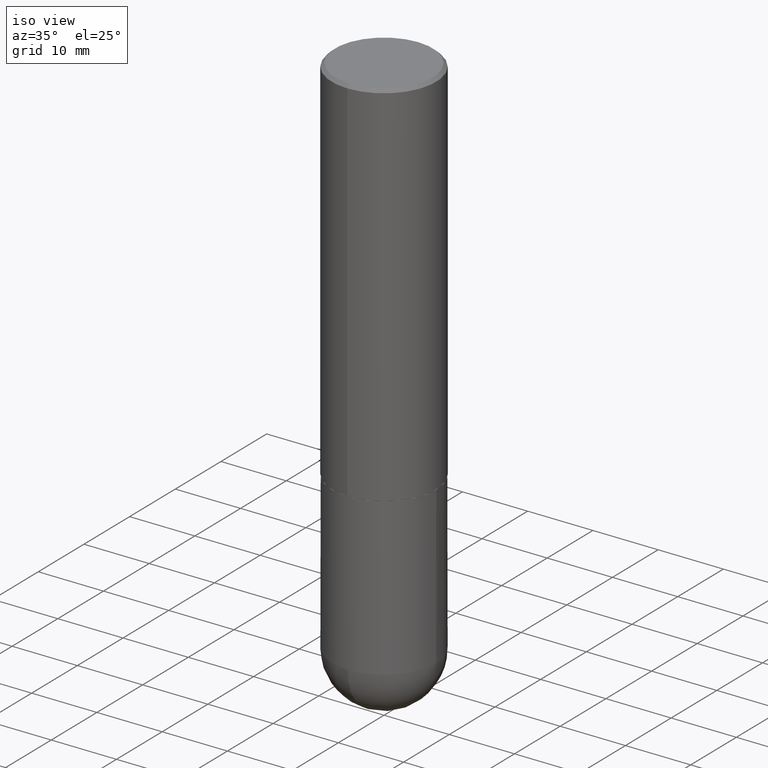
[diagram: clean part render]
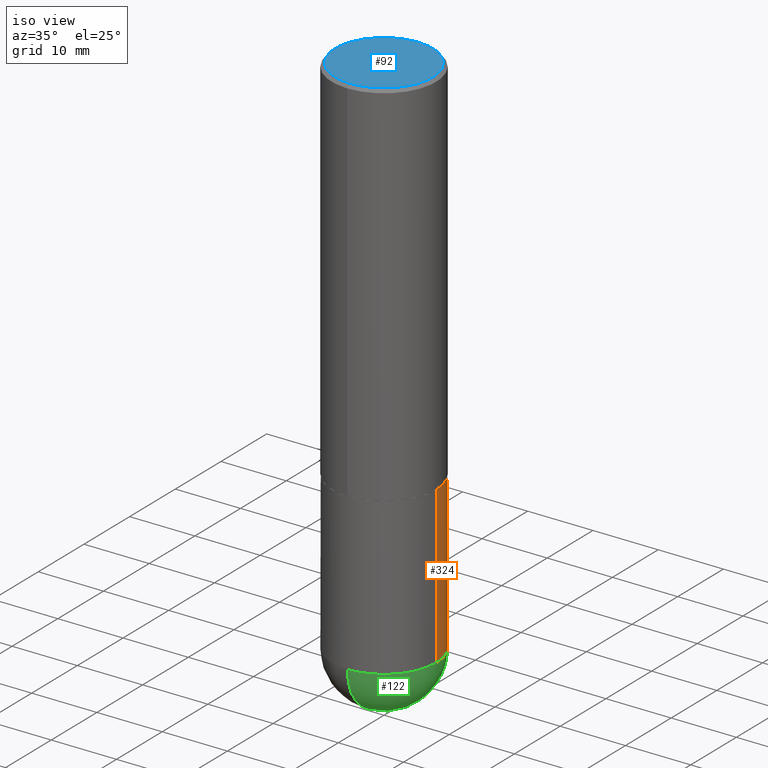
[diagram: same view with three faces highlighted in distinct colors, each labeled with its STEP entity id]
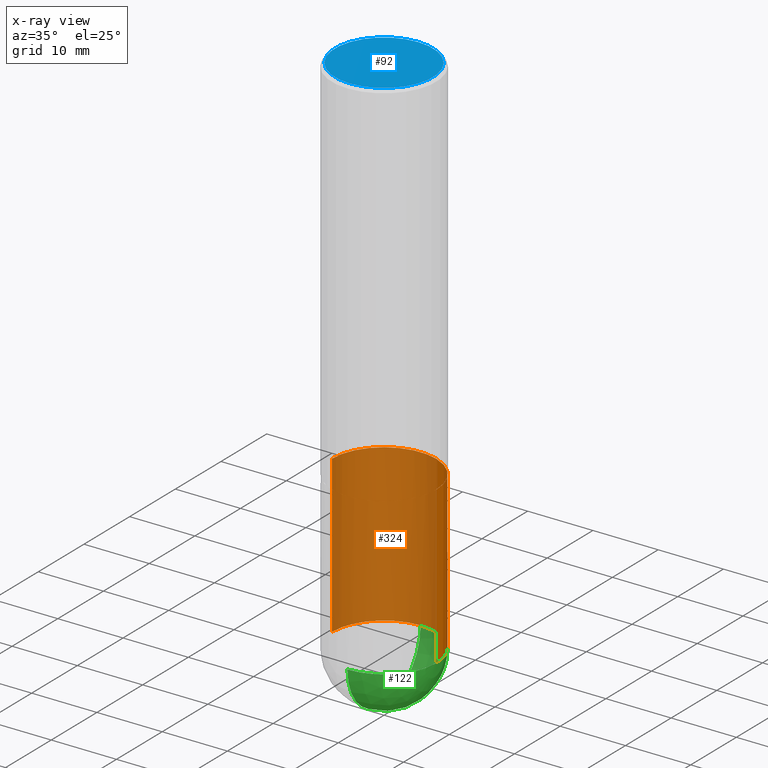
[diagram: x-ray of the same camera — body ghosted, the three highlighted faces saturated]
A machine part, iso view with three faces highlighted in distinct colors.
The next image is the same camera in x-ray (body ghosted, the three faces saturated) — at least one of them is partly hidden behind the body in this view.
Their STEP definitions:

[orange] entity #324 — the highlighted cylindrical surface (partial cylindrical patch) has radius 7.9997 mm, axis along (-0, 0, 1).
#1 = DIRECTION ( 'NONE',  ( 1.000000000000000000, -6.982962677686263555E-15, 0.000000000000000000 ) ) ;
#11 = EDGE_CURVE ( 'NONE', #368, #267, #52, .T. ) ;
#17 = VERTEX_POINT ( 'NONE', #150 ) ;
#26 = EDGE_CURVE ( 'NONE', #17, #267, #357, .T. ) ;
#31 = VECTOR ( 'NONE', #130, 39.37007874015748143 ) ;
#33 = CARTESIAN_POINT ( 'NONE',  ( 7.798477749484091354E-29, -1.113415941550384898E-14, -3.188949999999999729 ) ) ;
#34 = LINE ( 'NONE', #163, #31 ) ;
#38 = CARTESIAN_POINT ( 'NONE',  ( 0.3149500000000000077, -1.168398043933816632E-14, -3.188949999999999729 ) ) ;
#49 = AXIS2_PLACEMENT_3D ( 'NONE', #93, #185, #1 ) ;
#52 = LINE ( 'NONE', #78, #405 ) ;
#78 = CARTESIAN_POINT ( 'NONE',  ( -0.3149500000000000077, 2.237854346276435590E-15, -1.549218606675782676E-29 ) ) ;
#80 = DIRECTION ( 'NONE',  ( -2.445468806185136877E-29, 3.491481338843145188E-15, 1.000000000000000000 ) ) ;
#81 = CIRCLE ( 'NONE', #397, 0.3149500000000000077 ) ;
#93 = CARTESIAN_POINT ( 'NONE',  ( 7.798477749484091354E-29, -1.113415941550384898E-14, -3.188949999999999729 ) ) ;
#94 = AXIS2_PLACEMENT_3D ( 'NONE', #303, #124, #161 ) ;
#110 = EDGE_CURVE ( 'NONE', #230, #341, #300, .T. ) ;
#111 = ORIENTED_EDGE ( 'NONE', *, *, #144, .T. ) ;
#124 = DIRECTION ( 'NONE',  ( -2.445468806185136597E-29, 3.491481338843145583E-15, 1.000000000000000000 ) ) ;
#128 = EDGE_CURVE ( 'NONE', #230, #17, #34, .T. ) ;
#130 = DIRECTION ( 'NONE',  ( -2.445468806185136877E-29, 3.491481338843145188E-15, 1.000000000000000000 ) ) ;
#141 = ORIENTED_EDGE ( 'NONE', *, *, #110, .T. ) ;
#144 = EDGE_CURVE ( 'NONE', #341, #368, #81, .T. ) ;
#150 = CARTESIAN_POINT ( 'NONE',  ( 0.3149500000000000077, -1.003451736783519063E-14, -2.244099999999999540 ) ) ;
#161 = DIRECTION ( 'NONE',  ( 1.000000000000000000, -6.982962677686266711E-15, 4.876176775795936353E-29 ) ) ;
#163 = CARTESIAN_POINT ( 'NONE',  ( 0.3149500000000000077, -2.199284095337289871E-15, 1.535751875536930130E-29 ) ) ;
#176 = ORIENTED_EDGE ( 'NONE', *, *, #11, .T. ) ;
#178 = CYLINDRICAL_SURFACE ( 'NONE', #94, 0.3149500000000000077 ) ;
#179 = EDGE_LOOP ( 'NONE', ( #111, #176, #350, #299, #141 ) ) ;
#185 = DIRECTION ( 'NONE',  ( -2.445468806185136597E-29, 3.491481338843145583E-15, 1.000000000000000000 ) ) ;
#217 = DIRECTION ( 'NONE',  ( -2.445468806185136597E-29, 3.491481338843145583E-15, 1.000000000000000000 ) ) ;
#230 = VERTEX_POINT ( 'NONE', #38 ) ;
#247 = CARTESIAN_POINT ( 'NONE',  ( -0.3149500000000000077, -7.246841997724440463E-15, -2.244099999999999540 ) ) ;
#267 = VERTEX_POINT ( 'NONE', #247 ) ;
#273 = CARTESIAN_POINT ( 'NONE',  ( 2.199284095337366390E-15, 0.3149499999999886835, -3.188950000000001062 ) ) ;
#299 = ORIENTED_EDGE ( 'NONE', *, *, #128, .F. ) ;
#300 = CIRCLE ( 'NONE', #49, 0.3149500000000000077 ) ;
#303 = CARTESIAN_POINT ( 'NONE',  ( 0.000000000000000000, 0.000000000000000000, 0.000000000000000000 ) ) ;
#311 = DIRECTION ( 'NONE',  ( 1.000000000000000000, -6.982962677686266711E-15, 0.000000000000000000 ) ) ;
#314 = FACE_OUTER_BOUND ( 'NONE', #179, .T. ) ;
#318 = CARTESIAN_POINT ( 'NONE',  ( -0.3149500000000000077, -7.246841997724442041E-15, -3.188949999999999729 ) ) ;
#324 = ADVANCED_FACE ( 'NONE', ( #314 ), #178, .T. ) ;
#336 = AXIS2_PLACEMENT_3D ( 'NONE', #378, #217, #311 ) ;
#341 = VERTEX_POINT ( 'NONE', #273 ) ;
#350 = ORIENTED_EDGE ( 'NONE', *, *, #26, .F. ) ;
#357 = CIRCLE ( 'NONE', #336, 0.3149500000000000077 ) ;
#361 = DIRECTION ( 'NONE',  ( -2.445468806185136597E-29, 3.491481338843145583E-15, 1.000000000000000000 ) ) ;
#368 = VERTEX_POINT ( 'NONE', #318 ) ;
#378 = CARTESIAN_POINT ( 'NONE',  ( 5.487876547960064752E-29, -7.835233272497900762E-15, -2.244099999999999540 ) ) ;
#379 = DIRECTION ( 'NONE',  ( 1.000000000000000000, -6.982962677686263555E-15, 0.000000000000000000 ) ) ;
#397 = AXIS2_PLACEMENT_3D ( 'NONE', #33, #361, #379 ) ;
#405 = VECTOR ( 'NONE', #80, 39.37007874015748143 ) ;

[blue] entity #92 — the highlighted planar face has unit normal (0, -0, -1).
#3 = DIRECTION ( 'NONE',  ( -2.446054750560314291E-29, 3.490642233148008459E-15, 1.000000000000000000 ) ) ;
#7 = DIRECTION ( 'NONE',  ( -6.982962677686265922E-15, -1.000000000000000000, 3.490642233148008065E-15 ) ) ;
#12 = ORIENTED_EDGE ( 'NONE', *, *, #139, .T. ) ;
#19 = EDGE_LOOP ( 'NONE', ( #12, #102 ) ) ;
#59 = FACE_OUTER_BOUND ( 'NONE', #19, .T. ) ;
#88 = CARTESIAN_POINT ( 'NONE',  ( -5.423274087960184450E-45, 7.739282846810618140E-31, 2.217151552604406197E-16 ) ) ;
#91 = CARTESIAN_POINT ( 'NONE',  ( 2.129454468560426178E-15, 0.2949499999999997679, -8.078497714065635911E-16 ) ) ;
#92 = ADVANCED_FACE ( 'NONE', ( #59 ), #287, .F. ) ;
#102 = ORIENTED_EDGE ( 'NONE', *, *, #175, .T. ) ;
#108 = AXIS2_PLACEMENT_3D ( 'NONE', #320, #246, #352 ) ;
#139 = EDGE_CURVE ( 'NONE', #364, #296, #262, .T. ) ;
#175 = EDGE_CURVE ( 'NONE', #296, #364, #218, .T. ) ;
#199 = AXIS2_PLACEMENT_3D ( 'NONE', #88, #3, #7 ) ;
#218 = CIRCLE ( 'NONE', #268, 0.2949499999999997679 ) ;
#246 = DIRECTION ( 'NONE',  ( 2.446054750560313731E-29, -3.490642233148008854E-15, -1.000000000000000000 ) ) ;
#250 = DIRECTION ( 'NONE',  ( -6.982962677686265922E-15, -1.000000000000000000, 3.490642233148008065E-15 ) ) ;
#262 = CIRCLE ( 'NONE', #199, 0.2949499999999997679 ) ;
#268 = AXIS2_PLACEMENT_3D ( 'NONE', #288, #356, #250 ) ;
#287 = PLANE ( 'NONE',  #108 ) ;
#288 = CARTESIAN_POINT ( 'NONE',  ( -5.423274087960184450E-45, 7.739282846810618140E-31, 2.217151552604406197E-16 ) ) ;
#296 = VERTEX_POINT ( 'NONE', #412 ) ;
#320 = CARTESIAN_POINT ( 'NONE',  ( 2.059624841783562486E-15, 0.2949499999999997679, -9.187073490367838516E-16 ) ) ;
#352 = DIRECTION ( 'NONE',  ( 6.982962677686265922E-15, 1.000000000000000000, -3.490642233148008854E-15 ) ) ;
#356 = DIRECTION ( 'NONE',  ( -2.446054750560314291E-29, 3.490642233148008459E-15, 1.000000000000000000 ) ) ;
#364 = VERTEX_POINT ( 'NONE', #91 ) ;
#412 = CARTESIAN_POINT ( 'NONE',  ( -2.092108864420427242E-15, -0.2949499999999997679, 1.251280081927445028E-15 ) ) ;

[green] entity #122 — the highlighted spherical surface has radius 7.9997 mm.
#1 = DIRECTION ( 'NONE',  ( 1.000000000000000000, -6.982962677686263555E-15, 0.000000000000000000 ) ) ;
#25 = VERTEX_POINT ( 'NONE', #243 ) ;
#27 = CARTESIAN_POINT ( 'NONE',  ( 7.798477749484091354E-29, -1.113415941550384898E-14, -3.188949999999999729 ) ) ;
#37 = DIRECTION ( 'NONE',  ( -7.105427357600999492E-15, -1.000000000000000000, 0.000000000000000000 ) ) ;
#38 = CARTESIAN_POINT ( 'NONE',  ( 0.3149500000000000077, -1.168398043933816632E-14, -3.188949999999999729 ) ) ;
#45 = EDGE_CURVE ( 'NONE', #25, #230, #177, .T. ) ;
#49 = AXIS2_PLACEMENT_3D ( 'NONE', #93, #185, #1 ) ;
#68 = CARTESIAN_POINT ( 'NONE',  ( 7.467357971570205107E-29, -1.160834178364390085E-14, -3.188949999999999729 ) ) ;
#70 = AXIS2_PLACEMENT_3D ( 'NONE', #383, #257, #37 ) ;
#93 = CARTESIAN_POINT ( 'NONE',  ( 7.798477749484091354E-29, -1.113415941550384898E-14, -3.188949999999999729 ) ) ;
#99 = EDGE_CURVE ( 'NONE', #274, #25, #328, .T. ) ;
#109 = DIRECTION ( 'NONE',  ( 1.000000000000000000, -6.982962677686263555E-15, 0.000000000000000000 ) ) ;
#110 = EDGE_CURVE ( 'NONE', #230, #341, #300, .T. ) ;
#120 = FACE_OUTER_BOUND ( 'NONE', #391, .T. ) ;
#122 = ADVANCED_FACE ( 'NONE', ( #120 ), #381, .T. ) ;
#134 = DIRECTION ( 'NONE',  ( 1.000000000000000000, -6.982962677686265922E-15, 4.883557194083112340E-29 ) ) ;
#146 = CIRCLE ( 'NONE', #329, 0.3149500000000001743 ) ;
#167 = AXIS2_PLACEMENT_3D ( 'NONE', #285, #187, #224 ) ;
#177 = CIRCLE ( 'NONE', #208, 0.3149500000000000077 ) ;
#185 = DIRECTION ( 'NONE',  ( -2.445468806185136597E-29, 3.491481338843145583E-15, 1.000000000000000000 ) ) ;
#187 = DIRECTION ( 'NONE',  ( -1.000000000000000000, 6.982962677686265133E-15, -4.883557194083112901E-29 ) ) ;
#198 = DIRECTION ( 'NONE',  ( 6.982962677686264344E-15, 1.000000000000000000, 0.000000000000000000 ) ) ;
#208 = AXIS2_PLACEMENT_3D ( 'NONE', #27, #399, #109 ) ;
#224 = DIRECTION ( 'NONE',  ( 6.982962677686265133E-15, 1.000000000000000000, -3.469564049740291586E-15 ) ) ;
#230 = VERTEX_POINT ( 'NONE', #38 ) ;
#243 = CARTESIAN_POINT ( 'NONE',  ( -2.237854346276359071E-15, -0.3149500000000114985, -3.188949999999998841 ) ) ;
#257 = DIRECTION ( 'NONE',  ( -1.000000000000000000, 7.105427357601001070E-15, -4.926315508542082329E-29 ) ) ;
#261 = ORIENTED_EDGE ( 'NONE', *, *, #393, .T. ) ;
#273 = CARTESIAN_POINT ( 'NONE',  ( 2.199284095337366390E-15, 0.3149499999999886835, -3.188950000000001062 ) ) ;
#274 = VERTEX_POINT ( 'NONE', #386 ) ;
#285 = CARTESIAN_POINT ( 'NONE',  ( 7.467357971570205107E-29, -1.160834178364390085E-14, -3.188949999999999729 ) ) ;
#300 = CIRCLE ( 'NONE', #49, 0.3149500000000000077 ) ;
#328 = CIRCLE ( 'NONE', #70, 0.3149500000000001743 ) ;
#329 = AXIS2_PLACEMENT_3D ( 'NONE', #68, #134, #198 ) ;
#338 = ORIENTED_EDGE ( 'NONE', *, *, #45, .F. ) ;
#341 = VERTEX_POINT ( 'NONE', #273 ) ;
#366 = ORIENTED_EDGE ( 'NONE', *, *, #99, .F. ) ;
#381 = SPHERICAL_SURFACE ( 'NONE', #167, 0.3149500000000001743 ) ;
#383 = CARTESIAN_POINT ( 'NONE',  ( 7.467357971570205107E-29, -1.160834178364390085E-14, -3.188949999999999729 ) ) ;
#386 = CARTESIAN_POINT ( 'NONE',  ( 8.251025103217066053E-29, -1.268869870584297589E-14, -3.503899999999999793 ) ) ;
#391 = EDGE_LOOP ( 'NONE', ( #366, #261, #400, #338 ) ) ;
#393 = EDGE_CURVE ( 'NONE', #274, #341, #146, .T. ) ;
#399 = DIRECTION ( 'NONE',  ( -2.445468806185136597E-29, 3.491481338843145583E-15, 1.000000000000000000 ) ) ;
#400 = ORIENTED_EDGE ( 'NONE', *, *, #110, .F. ) ;